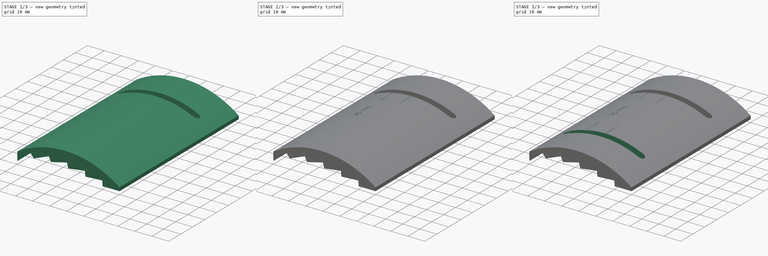
[diagram: build sequence overview — one tinted view per stage of 3, left to right]
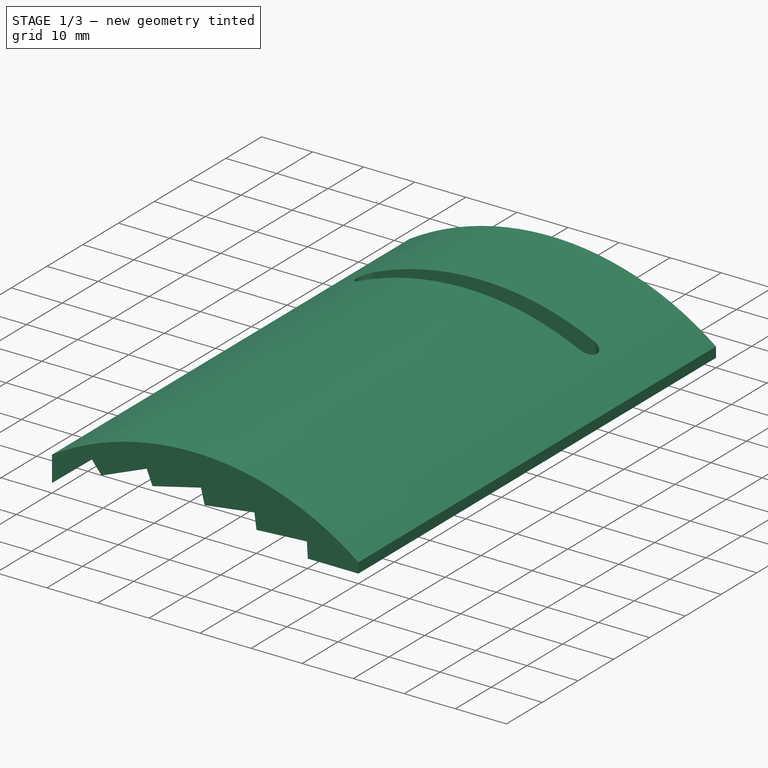
[diagram: stage 1 of 3 — iso view after this stage's code; geometry added in this stage tinted green]
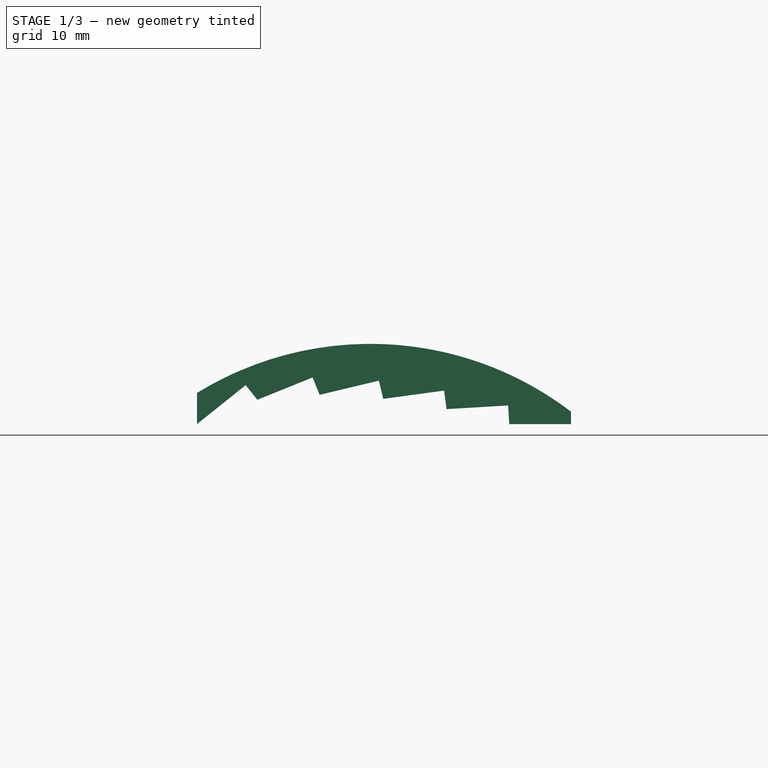
[diagram: stage 1 of 3 — front view after this stage's code; geometry added in this stage tinted green]
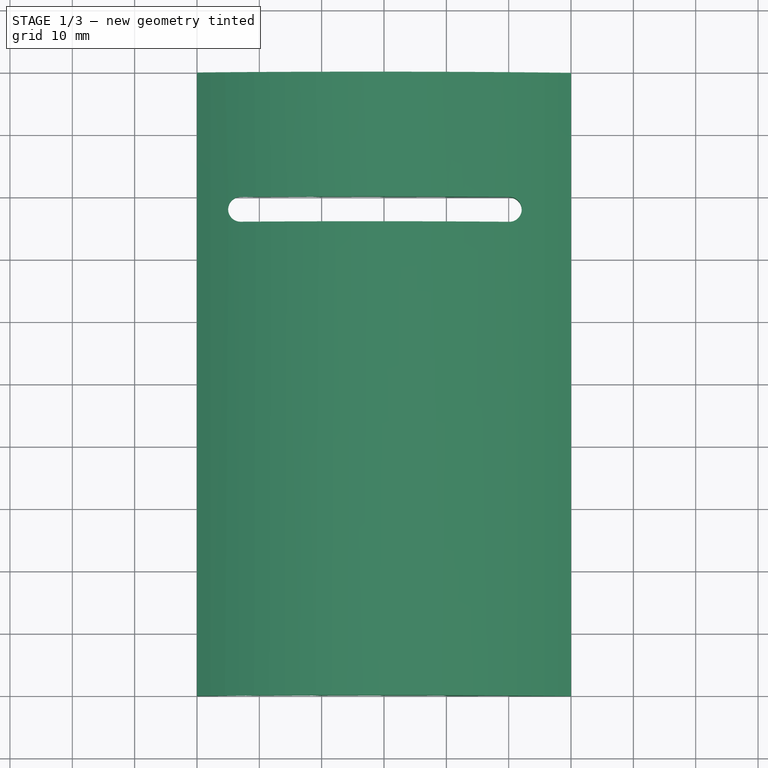
[diagram: stage 1 of 3 — top view after this stage's code; geometry added in this stage tinted green]
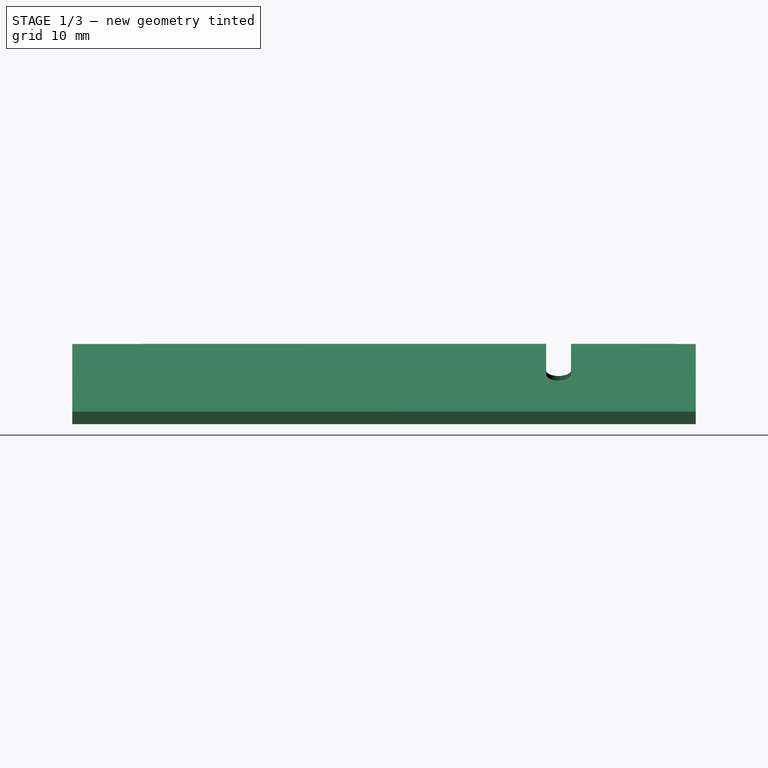
[diagram: stage 1 of 3 — right view after this stage's code; geometry added in this stage tinted green]
FCSTD DOCUMENT  (FreeCAD 1.1R42461 (Git))
Label: nouvelle tracette
License: Creative Commons Attribution-NonCommercial-ShareAlike 4.0
LicenseURL: https://creativecommons.org/licenses/by-nc-sa/4.0/
objects: Sketcher::SketchObject×6, PartDesign::Pocket×5, Part::DatumPlane×5, App::Point×1, PartDesign::Pad×1, Part::Part2DObjectPython×1, PartDesign::Mirrored×1, PartDesign::Body×1
note: 34 computed .brp shape members not serialized (recipe doc carries the construction recipe); baked Part::Feature solids carry a one-line shape summary decoded from their .brp

FEATURE [App::Point] Origin001  label="Origine"
  Role = Origin
FEATURE [Sketcher::SketchObject] Sketch
  ArcFitTolerance = 1e-06
  AttachmentSupport = -> [Origin]
  ExternalTypes = [0]
  FullyConstrained = true
  MakeInternals = false
  MapMode = 5
  Placement = pos=(0,0,0) rot=(1,0,0;1.5708rad)
  sketch-geometry (14):
    g0: LineSegment StartX=0 StartY=0 StartZ=0 EndX=7.8083 EndY=6.24744 EndZ=0
    g1: LineSegment StartX=7.8083 StartY=6.24744 StartZ=0 EndX=9.68253 EndY=3.90495 EndZ=0
    g2: LineSegment StartX=9.68253 StartY=3.90495 StartZ=0 EndX=18.5484 EndY=7.48053 EndZ=0
    g3: LineSegment StartX=18.5484 StartY=7.48053 StartZ=0 EndX=19.6704 EndY=4.69827 EndZ=0
    g4: LineSegment StartX=19.6704 StartY=4.69827 StartZ=0 EndX=29.1792 EndY=6.96944 EndZ=0
    g5: LineSegment StartX=29.1792 StartY=6.96944 StartZ=0 EndX=29.8762 EndY=4.05151 EndZ=0
    g6: LineSegment StartX=29.8762 StartY=4.05151 StartZ=0 EndX=39.6372 EndY=5.37521 EndZ=0
    g7: LineSegment StartX=39.6372 StartY=5.37521 StartZ=0 EndX=40.0403 EndY=2.40242 EndZ=0
    g8: LineSegment StartX=40.0403 StartY=2.40242 StartZ=0 EndX=49.9102 EndY=2.99461 EndZ=0
    g9: LineSegment StartX=49.9102 StartY=2.99461 StartZ=0 EndX=50.0899 EndY=0 EndZ=0
    g10: LineSegment StartX=50.0899 StartY=0 StartZ=0 EndX=60 EndY=0 EndZ=0
    g11: LineSegment StartX=60 StartY=0 StartZ=0 EndX=60 EndY=2 EndZ=0
    g12: LineSegment StartX=0 StartY=0 StartZ=0 EndX=-3.6e-15 EndY=5 EndZ=0
    g13: ArcOfCircle CenterX=27.8152 CenterY=-40.1957 CenterZ=0 NormalX=0 NormalY=0 NormalZ=1 AngleXU=0 Radius=53.0692 StartAngle=0.919185 EndAngle=2.12249
  constraints (42):
    c: Coincident(g-1,g0)
    c: Coincident(g0,g1)
    c: Coincident(g1,g2)
    c: Coincident(g2,g3)
    c: Coincident(g3,g4)
    c: Coincident(g4,g5)
    c: Coincident(g5,g6)
    c: Coincident(g6,g7)
    c: Coincident(g7,g8)
    c: Coincident(g8,g9)
    c: PointOnObject(g9,g-1)
    c: Coincident(g9,g10)
    c: PointOnObject(g10,g-1)
    c: Coincident(g10,g11)
    c: Coincident(g0,g12)
    c: PointOnObject(g12,g-2)
    c: Coincident(g13,g12)
    c: Coincident(g13,g11)
    c: Perpendicular(g0,g1)
    c: Perpendicular(g3,g2)
    c: Perpendicular(g5,g4)
    c: Perpendicular(g7,g6)
    c: Perpendicular(g9,g8)
    c: Vertical(g11)
    c: PointOnObject(g0,g2)
    c: PointOnObject(g0,g6)
    c: PointOnObject(g0,g8)
    c: PointOnObject(g0,g4)
    c: Distance(g1,g0) = 3
    c: Distance(g12,g12) = 5
    c: DistanceY(g11,g11) = 2
    c: DistanceX(g0,g10) = 60
    c: Distance(g0,g13) = 2.5
    c: Distance(g0,g0) = 10
    c: Distance(g2,g-1) = 20
    c: Equal(g1,g3)
    c: Equal(g3,g5)
    c: Equal(g5,g7)
    c: Equal(g7,g9)
    c: Distance(g4,g-1) = 30
    c: Distance(g6,g-1) = 40
    c: Distance(g8,g-1) = 50
FEATURE [PartDesign::Pad] Pad
  Direction = (0,-1,2e-16)
  Length = 100
  Length2 = 10
  Midplane = true
  Profile = -> Sketch
  ReferenceAxis = -> Sketch [N_Axis]
  Refine = true
  Suppressed = false
  Type = 0
FEATURE [Sketcher::SketchObject] Sketch001
  ArcFitTolerance = 1e-06
  AttachmentSupport = -> [Origin]
  ExternalGeometry = -> [Pad]
  ExternalTypes = [0,0,0]
  FullyConstrained = true
  MakeInternals = false
  MapMode = 5
  sketch-geometry (6):
    g0: ArcOfCircle CenterX=7 CenterY=28 CenterZ=0 NormalX=0 NormalY=0 NormalZ=1 AngleXU=0 Radius=2 StartAngle=1.5708 EndAngle=4.71239
    g1: ArcOfCircle CenterX=50.0899 CenterY=28 CenterZ=0 NormalX=0 NormalY=0 NormalZ=1 AngleXU=0 Radius=2 StartAngle=4.71239 EndAngle=7.85398
    g2: LineSegment StartX=7 StartY=30 StartZ=0 EndX=50.0899 EndY=30 EndZ=0
    g3: LineSegment StartX=7 StartY=26 StartZ=0 EndX=50.0899 EndY=26 EndZ=0
    g4: LineSegment [constr] StartX=7 StartY=30 StartZ=0 EndX=7 EndY=50 EndZ=0
    g5: LineSegment [constr] StartX=5 StartY=28 StartZ=0 EndX=0 EndY=28 EndZ=0
  constraints (17):
    c: Tangent(g0,g2) = 1.5708
    c: Tangent(g0,g3) = -1.5708
    c: Tangent(g1,g2) = 1.5708
    c: Tangent(g1,g3) = -1.5708
    c: Equal(g0,g1)
    c: Horizontal(g3)
    c: Radius(g0) = 2
    c: Coincident(g4,g0)
    c: PointOnObject(g4,g-3)
    c: Vertical(g4)
    c: PointOnObject(g5,g0)
    c: PointOnObject(g5,g-2)
    c: Horizontal(g5)
    c: PointOnObject(g0,g5)
    c: Distance(g5,g5) = 5
    c: PointOnObject(g1,g-4)
    c: DistanceY(g4,g4) = 20
FEATURE [PartDesign::Pocket] Pocket
  BaseFeature = -> Pad
  Direction = (0,0,-1)
  Length = 5
  Length2 = 5
  Profile = -> Sketch001
  ReferenceAxis = -> Sketch001 [N_Axis]
  Refine = true
  Reversed = true
  Suppressed = false
  Type = 1
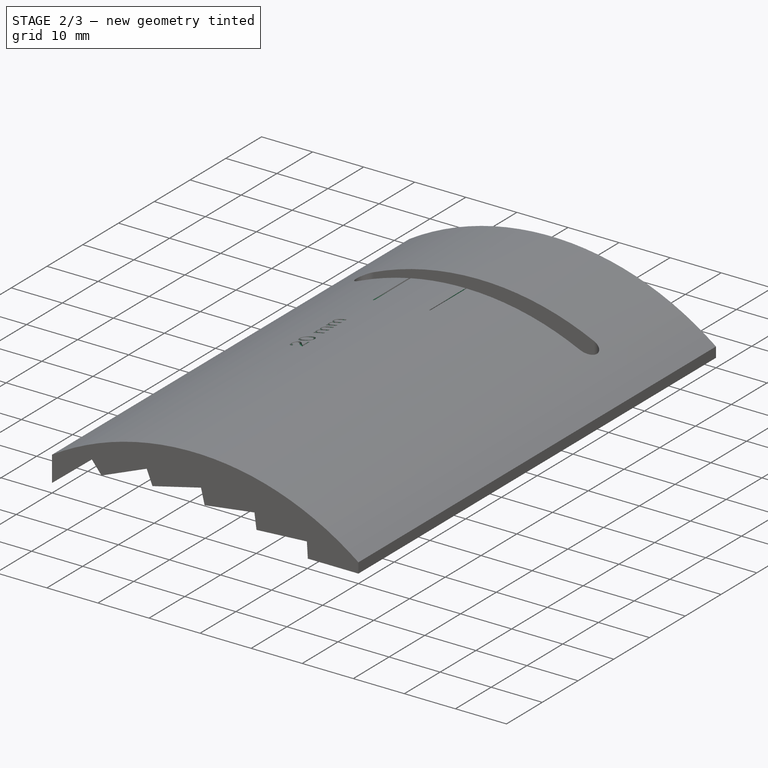
[diagram: stage 2 of 3 — iso view after this stage's code; geometry added in this stage tinted green]
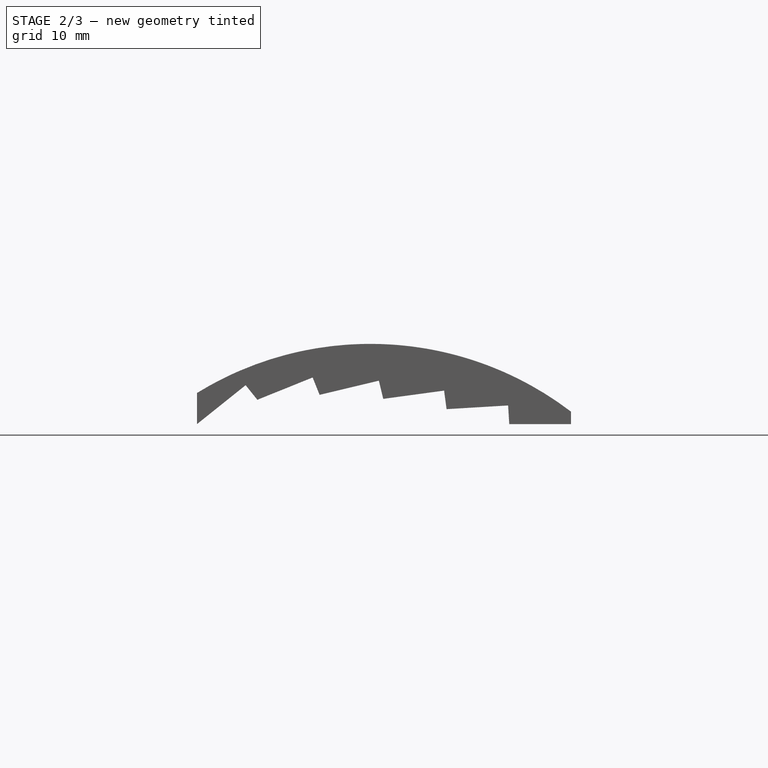
[diagram: stage 2 of 3 — front view after this stage's code; geometry added in this stage tinted green]
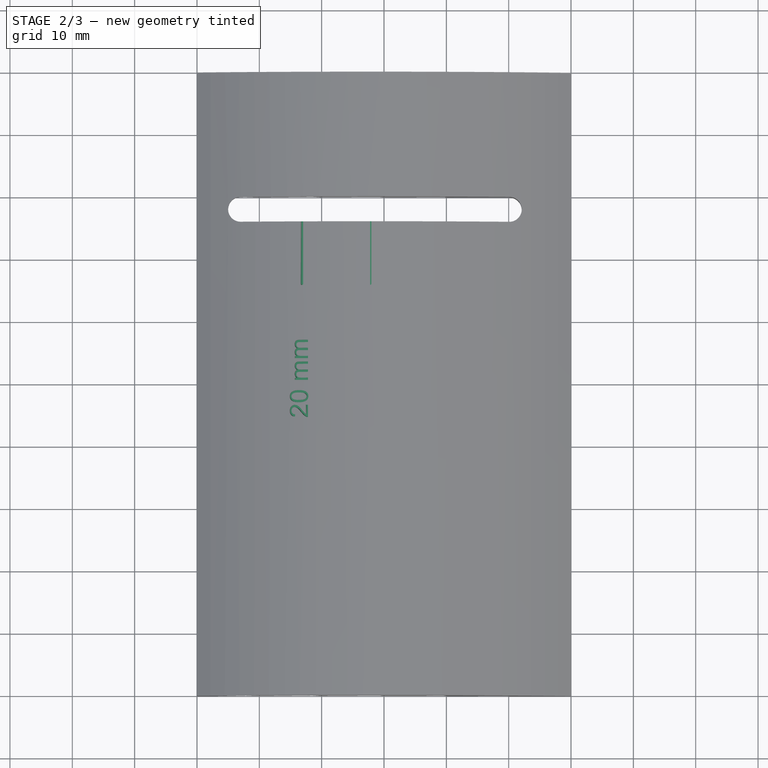
[diagram: stage 2 of 3 — top view after this stage's code; geometry added in this stage tinted green]
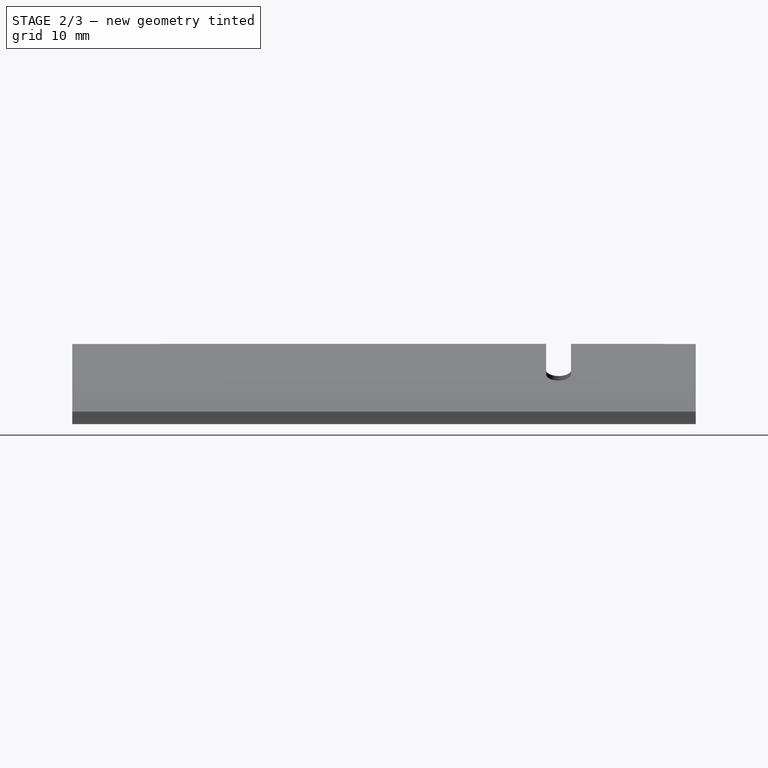
[diagram: stage 2 of 3 — right view after this stage's code; geometry added in this stage tinted green]
FEATURE [Sketcher::SketchObject] Sketch002
  ArcFitTolerance = 1e-06
  AttachmentSupport = -> [Pocket]
  ExternalGeometry = -> [Pocket]
  ExternalTypes = [0,0,0,0,0,0]
  FullyConstrained = true
  MakeInternals = false
  MapMode = 5
  Placement = pos=(0,26,0) rot=(0,0.707107,0.707107;3.14159rad)
  sketch-geometry (5):
    g0: GeomPoint X=-6.19147 Y=8.26822 Z=0
    g1: GeomPoint X=-16.8364 Y=11.7254 Z=0
    g2: GeomPoint X=-27.769 Y=12.8735 Z=0
    g3: GeomPoint X=-38.7755 Y=11.7293 Z=0
    g4: GeomPoint X=-49.5981 Y=8.1969 Z=0
  constraints (10):
    c: PointOnObject(g1,g-3)
    c: PointOnObject(g2,g-3)
    c: PointOnObject(g3,g-3)
    c: PointOnObject(g4,g-3)
    c: PointOnObject(g4,g-4)
    c: PointOnObject(g3,g-5)
    c: PointOnObject(g2,g-6)
    c: PointOnObject(g1,g-7)
    c: PointOnObject(g0,g-8)
    c: PointOnObject(g0,g-3)
FEATURE [Part::DatumPlane] DatumPlane
  AttachmentSupport = -> [Sketch002,Pocket]
  MapMode = 6
  Placement = pos=(16.8364,26,11.7254) rot=(-0.104003,0,0.994577;3.14159rad)
FEATURE [Sketcher::SketchObject] Sketch003
  ArcFitTolerance = 1e-06
  AttachmentSupport = -> [DatumPlane]
  ExternalTypes = [0]
  FullyConstrained = true
  MakeInternals = false
  MapMode = 5
  Placement = pos=(16.8364,26,11.7254) rot=(-0.104003,0,0.994577;3.14159rad)
  sketch-geometry (4):
    g0: ArcOfCircle CenterX=2.6e-14 CenterY=3.858e-13 CenterZ=0 NormalX=0 NormalY=0 NormalZ=1 AngleXU=0 Radius=0.2 StartAngle=3.14159 EndAngle=6.28319
    g1: ArcOfCircle CenterX=2.158e-13 CenterY=10 CenterZ=0 NormalX=0 NormalY=0 NormalZ=1 AngleXU=0 Radius=0.2 StartAngle=1.50649e-11 EndAngle=3.14159
    g2: LineSegment StartX=-0.2 StartY=4.116e-13 StartZ=0 EndX=-0.2 EndY=10 EndZ=0
    g3: LineSegment StartX=0.2 StartY=7.391e-13 StartZ=0 EndX=0.2 EndY=10 EndZ=0
  constraints (9):
    c: Tangent(g0,g2) = 1.5708
    c: Tangent(g0,g3) = -1.5708
    c: Tangent(g1,g2) = 1.5708
    c: Tangent(g1,g3) = -1.5708
    c: Equal(g0,g1)
    c: Vertical(g3)
    c: Distance(g0,g1) = 10
    c: Radius(g0) = 0.2
    c: Coincident(g0,g-1)
FEATURE [PartDesign::Pocket] Pocket001
  BaseFeature = -> Pocket
  Direction = (0.206878,0,-0.978367)
  Length = 0.5
  Length2 = 5
  Profile = -> Sketch003
  ReferenceAxis = -> Sketch003 [N_Axis]
  Refine = true
  Suppressed = false
  Type = 0
FEATURE [Part::Part2DObjectPython] ShapeString  # Draft 2D object (typed FeaturePython)
  AttachmentOffset = pos=(0.5,19,0) rot=(0,0,-1;1.5708rad)
  AttachmentSupport = -> [DatumPlane,Pocket001]
  FontFile = <path>
  Fuse = false
  Justification = 5
  JustificationReference = 0
  KeepLeftMargin = false
  MakeFace = true
  MapMode = 53
  ObliqueAngle = 0
  Placement = pos=(16.3472,7,11.622) rot=(-0.103445,-0.103445,0.989241;1.58161rad)
  ScaleToSize = true
  Size = 3
  String = 20 mm
  Tracking = 0
FEATURE [PartDesign::Pocket] Pocket002
  BaseFeature = -> Pocket001
  Direction = (0.206878,0,-0.978367)
  Length = 0.5
  Length2 = 5
  Profile = -> ShapeString
  ReferenceAxis = -> ShapeString [N_Axis]
  Refine = true
  Suppressed = false
  Type = 0
FEATURE [Part::DatumPlane] DatumPlane001
  AttachmentSupport = -> [Sketch002]
  MapMode = 1
  Placement = pos=(27.769,26,12.8735) rot=(-0.006712,0,0.999977;3.14159rad)
FEATURE [Part::DatumPlane] DatumPlane002
  AttachmentSupport = -> [Sketch002,Pocket002]
  MapMode = 6
  Placement = pos=(6.19147,26,8.26822) rot=(-0.208301,0,0.978065;3.14159rad)
FEATURE [Part::DatumPlane] DatumPlane003
  AttachmentSupport = -> [Sketch002]
  MapMode = 1
  Placement = pos=(38.7755,26,11.7293) rot=(0.109739,0,0.99396;3.14159rad)
FEATURE [Part::DatumPlane] DatumPlane004
  AttachmentSupport = -> [Sketch002,Pocket002]
  MapMode = 6
  Placement = pos=(49.5981,26,8.1969) rot=(0.209908,0,0.977721;3.14159rad)
FEATURE [Sketcher::SketchObject] Sketch004
  ArcFitTolerance = 1e-06
  AttachmentSupport = -> [DatumPlane001]
  ExternalGeometry = -> [Sketch003]
  ExternalTypes = [0]
  FullyConstrained = true
  MakeInternals = false
  MapMode = 5
  Placement = pos=(27.769,26,12.8735) rot=(-0.006712,0,0.999977;3.14159rad)
  sketch-geometry (4):
    g0: ArcOfCircle CenterX=3.3e-15 CenterY=1e-16 CenterZ=0 NormalX=0 NormalY=0 NormalZ=1 AngleXU=0 Radius=0.2 StartAngle=3.14159 EndAngle=6.28319
    g1: ArcOfCircle CenterX=1.116e-13 CenterY=10 CenterZ=0 NormalX=0 NormalY=0 NormalZ=1 AngleXU=0 Radius=0.2 StartAngle=-2.38929e-11 EndAngle=3.14159
    g2: LineSegment StartX=-0.2 StartY=4e-15 StartZ=0 EndX=-0.2 EndY=10 EndZ=0
    g3: LineSegment StartX=0.2 StartY=1e-16 StartZ=0 EndX=0.2 EndY=10 EndZ=0
  constraints (9):
    c: Tangent(g0,g2) = 1.5708
    c: Tangent(g0,g3) = -1.5708
    c: Tangent(g1,g2) = 1.5708
    c: Tangent(g1,g3) = -1.5708
    c: Equal(g0,g1)
    c: Vertical(g3)
    c: Radius(g0) = 0.2
    c: Coincident(g0,g-1)
    c: Horizontal(g1,g-3)
FEATURE [PartDesign::Pocket] Pocket003
  BaseFeature = -> Pocket002
  Direction = (0.0134238,0,-0.99991)
  Length = 0.5
  Length2 = 5
  Profile = -> Sketch004
  ReferenceAxis = -> Sketch004 [N_Axis]
  Refine = true
  Suppressed = false
  Type = 0
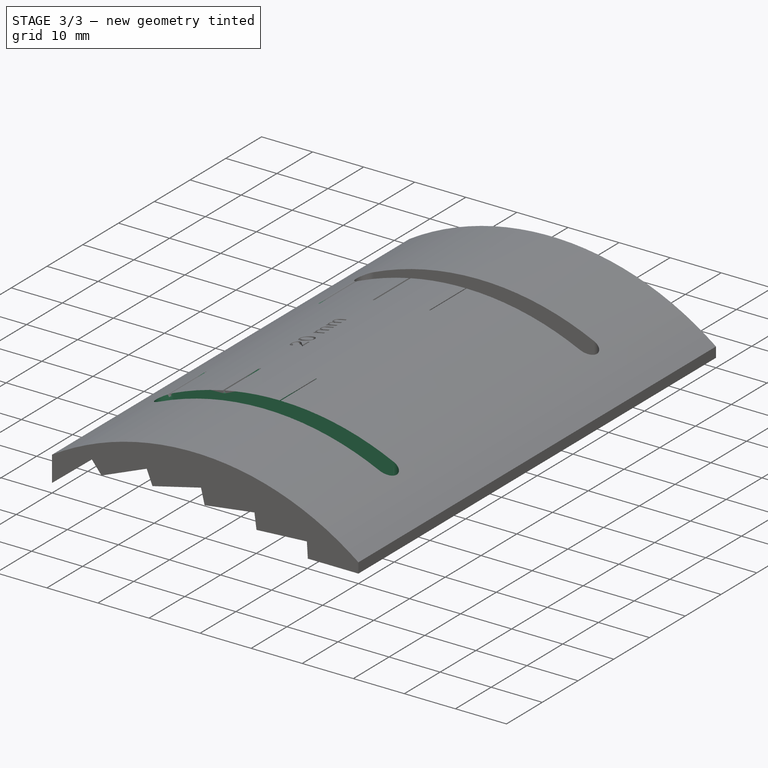
[diagram: stage 3 of 3 — iso view after this stage's code; geometry added in this stage tinted green]
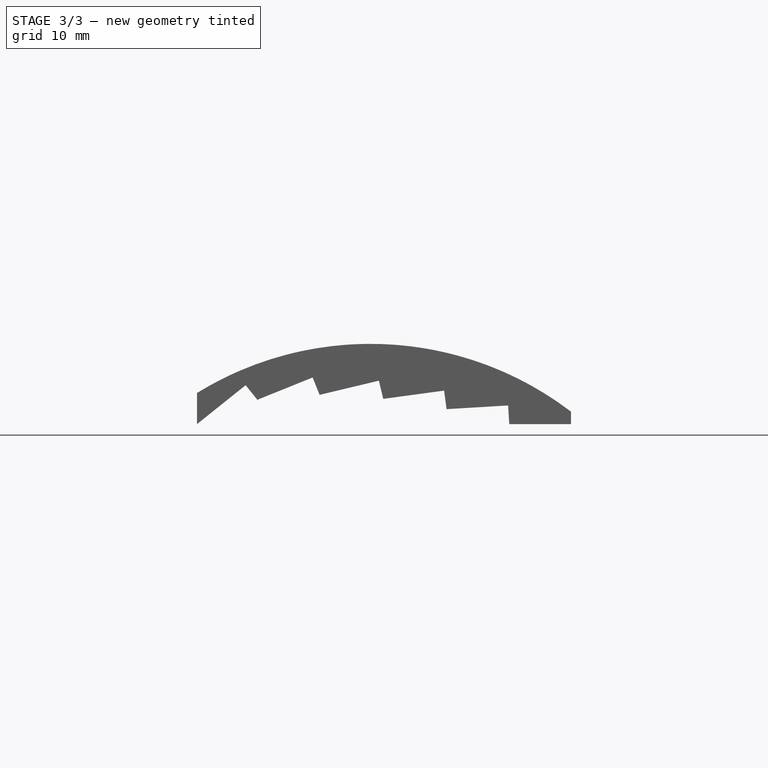
[diagram: stage 3 of 3 — front view after this stage's code; geometry added in this stage tinted green]
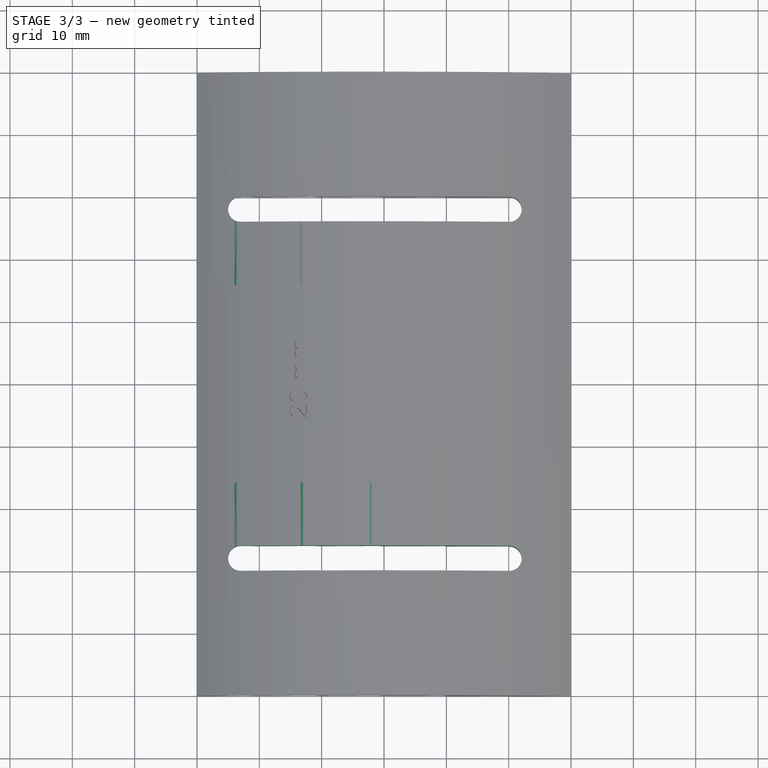
[diagram: stage 3 of 3 — top view after this stage's code; geometry added in this stage tinted green]
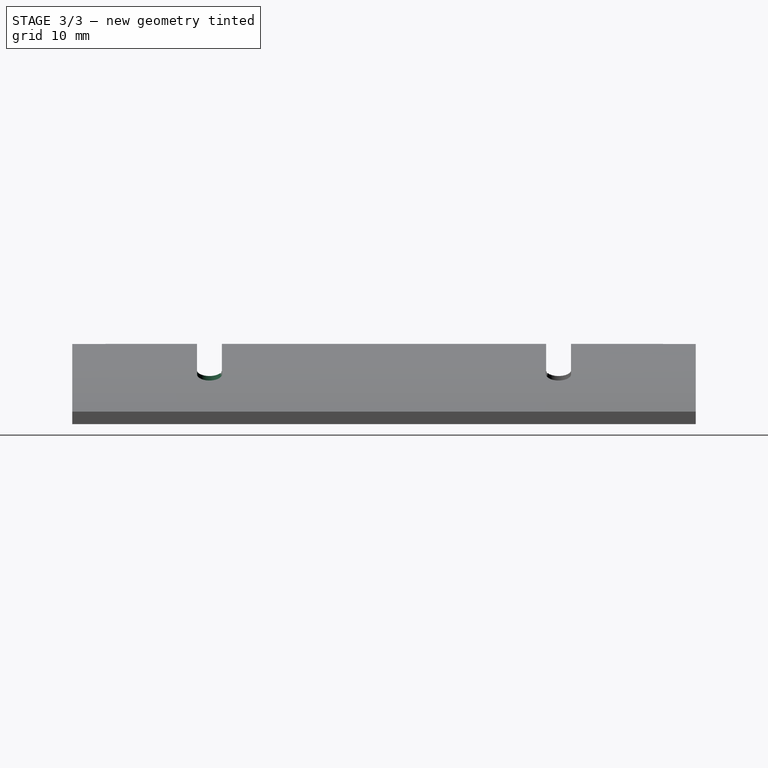
[diagram: stage 3 of 3 — right view after this stage's code; geometry added in this stage tinted green]
FEATURE [Sketcher::SketchObject] Sketch005
  ArcFitTolerance = 1e-06
  AttachmentSupport = -> [DatumPlane002]
  ExternalGeometry = -> [Pocket003,Pocket002]
  ExternalTypes = [0,0,0]
  FullyConstrained = true
  MakeInternals = false
  MapMode = 5
  Placement = pos=(6.19147,26,8.26822) rot=(-0.208301,0,0.978065;3.14159rad)
  sketch-geometry (4):
    g0: ArcOfCircle CenterX=0 CenterY=-0.170717 CenterZ=0 NormalX=0 NormalY=0 NormalZ=1 AngleXU=0 Radius=0.2 StartAngle=3.14159 EndAngle=6.28319
    g1: ArcOfCircle CenterX=0 CenterY=10 CenterZ=0 NormalX=0 NormalY=0 NormalZ=1 AngleXU=0 Radius=0.2 StartAngle=4.4e-15 EndAngle=3.14159
    g2: LineSegment StartX=-0.2 StartY=-0.170717 StartZ=0 EndX=-0.2 EndY=10 EndZ=0
    g3: LineSegment StartX=0.2 StartY=-0.170717 StartZ=0 EndX=0.2 EndY=10 EndZ=0
  constraints (10):
    c: Tangent(g0,g2) = 1.5708
    c: Tangent(g0,g3) = -1.5708
    c: Tangent(g1,g2) = 1.5708
    c: Tangent(g1,g3) = -1.5708
    c: Equal(g0,g1)
    c: PointOnObject(g0,g-3)
    c: PointOnObject(g1,g-2)
    c: Vertical(g2)
    c: Horizontal(g-4,g1)
    c: Radius(g1) = 0.2
FEATURE [PartDesign::Pocket] Pocket004
  BaseFeature = -> Pocket003
  Direction = (0.407464,0,-0.913221)
  Length = 0.5
  Length2 = 5
  Profile = -> Sketch005
  ReferenceAxis = -> Sketch005 [N_Axis]
  Refine = true
  Suppressed = false
  Type = 0
FEATURE [PartDesign::Mirrored] Mirrored
  BaseFeature = -> Pocket004
  MirrorPlane = -> XZ_Plane
  Originals = -> [Pocket,Pocket001,Pocket003,Pocket004]
  Refine = true
  Suppressed = false
  TransformMode = 0
FEATURE [PartDesign::Body] Body  label="Corps"
  AllowCompound = false
  Group = -> [Sketch,Pad,Sketch001,Pocket,Sketch002,DatumPlane,Sketch003,Pocket001,ShapeString,Pocket002,DatumPlane001,DatumPlane002,DatumPlane003,DatumPlane004,Sketch004,Pocket003,Sketch005,Pocket004,Mirrored]
  Origin = -> Origin
  Tip = -> Mirrored
note: 1 file-system path scrubbed to <path> (originals preserved in the JSON sidecar)
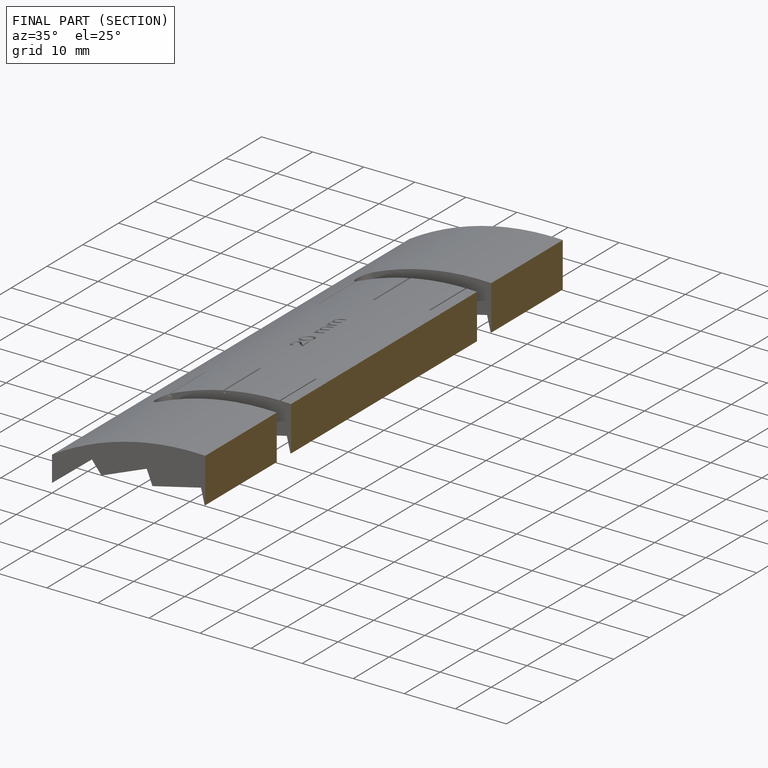
[diagram: finished part — half-section view (interior)]
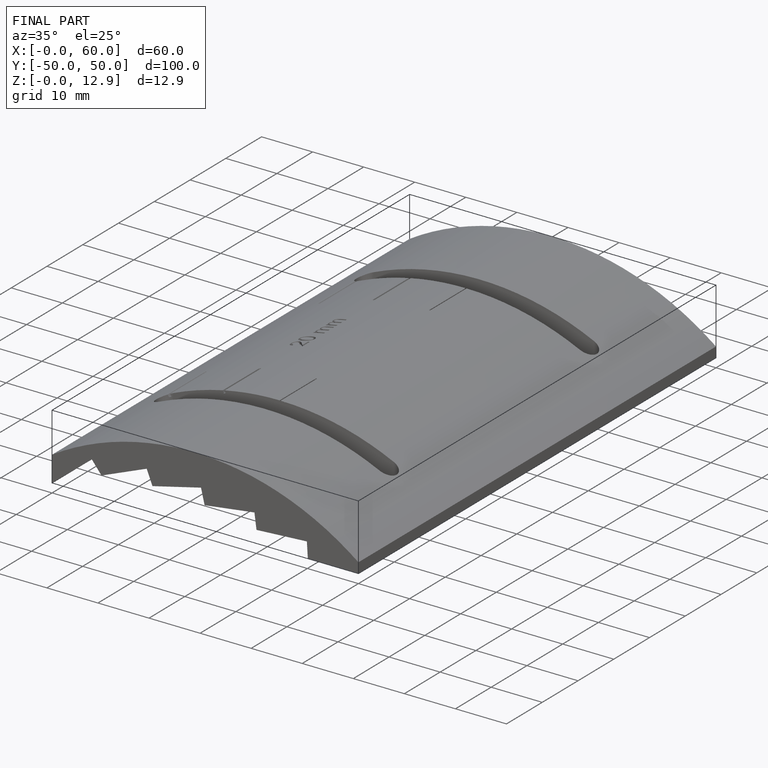
[diagram: finished part — iso view with bounding-box wireframe]
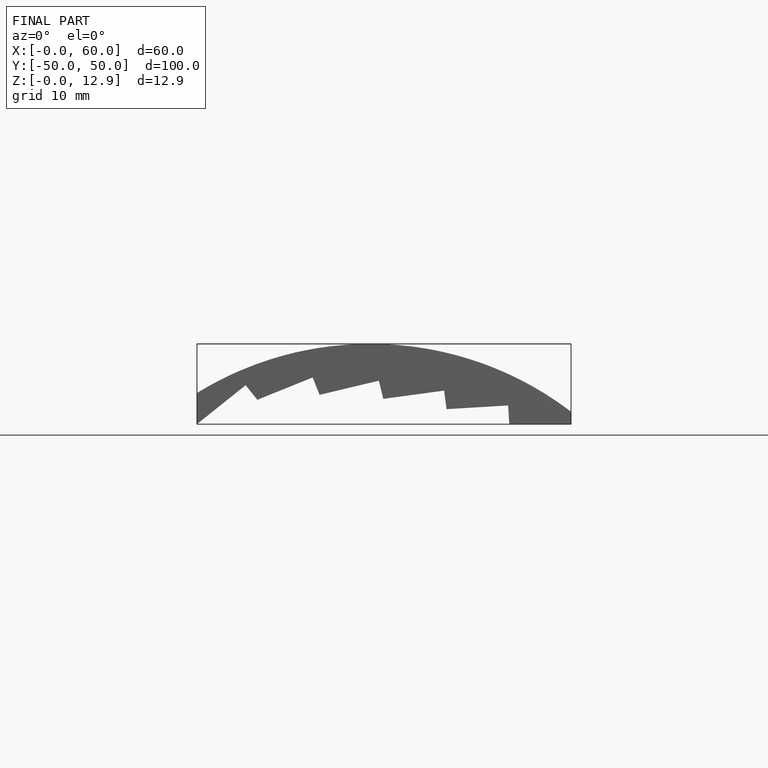
[diagram: finished part — front view with bounding-box wireframe]
